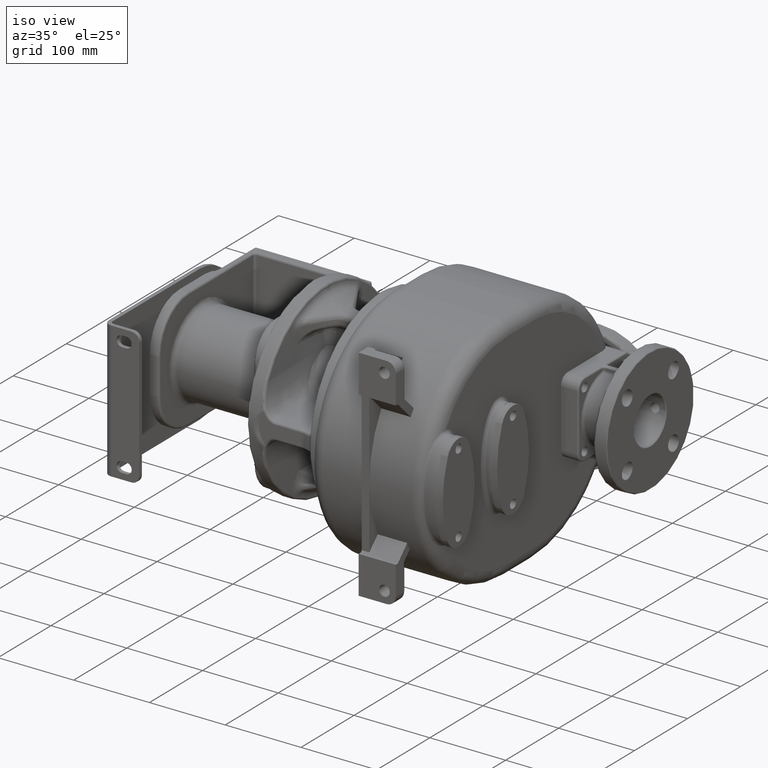
[diagram: clean part render]
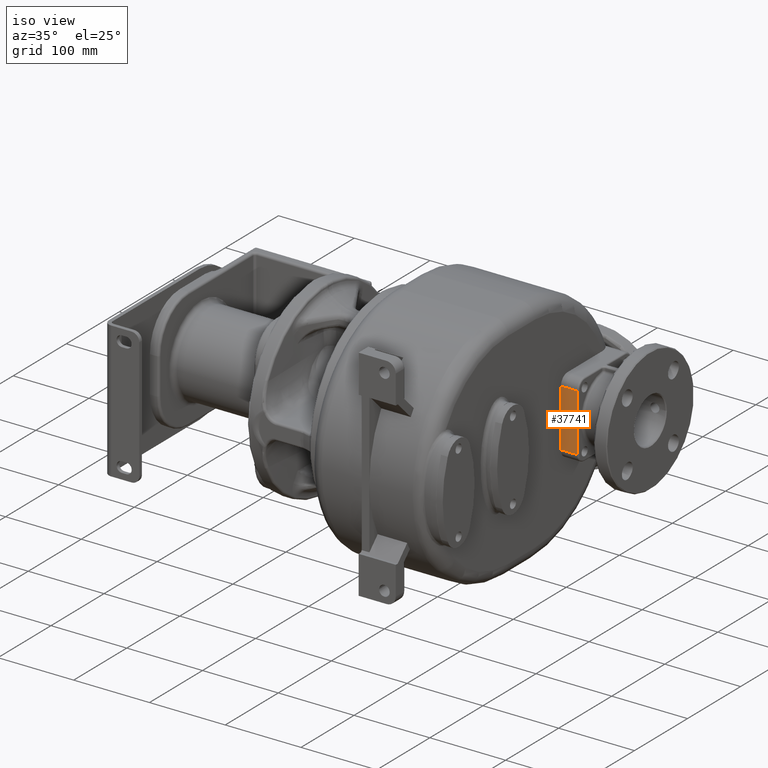
[diagram: same view with one face highlighted and labeled with its STEP entity id]
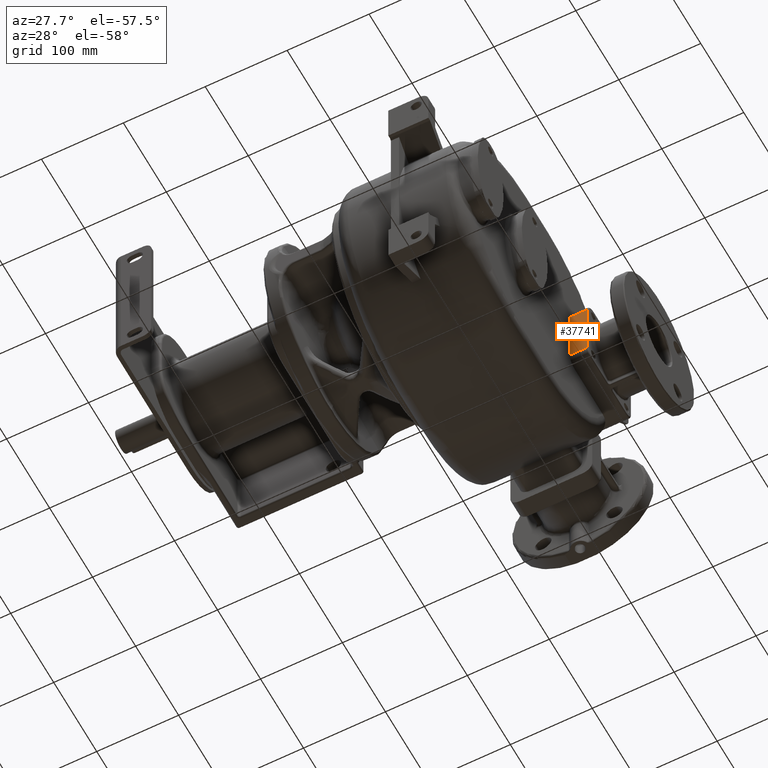
[diagram: same view with one face highlighted and labeled with its STEP entity id]
A machine part, iso view. The second image highlights one B-rep face of the part: STEP entity #37741.
A second angle (auxiliary view) of the same face is appended — the face is thin or edge-on in the first view.
In plain terms, the highlighted planar face has unit normal (0, -1, 0).
Its self-contained STEP definition (entity closure, byte-faithful):
#1481=DIRECTION('',(1.E0,0.E0,5.205571423652E-12));
#1482=VECTOR('',#1481,2.1E1);
#1483=CARTESIAN_POINT('',(5.1E1,2.6E2,-4.75E1));
#1484=LINE('',#1483,#1482);
#1499=DIRECTION('',(0.E0,0.E0,-1.E0));
#1500=VECTOR('',#1499,7.599999999986E1);
#1501=CARTESIAN_POINT('',(7.2E1,2.6E2,2.849999999997E1));
#1502=LINE('',#1501,#1500);
#1503=DIRECTION('',(0.E0,0.E0,-1.E0));
#1504=VECTOR('',#1503,7.6E1);
#1505=CARTESIAN_POINT('',(5.1E1,2.6E2,2.85E1));
#1506=LINE('',#1505,#1504);
#1516=DIRECTION('',(-1.E0,0.E0,1.412288275744E-12));
#1517=VECTOR('',#1516,2.1E1);
#1518=CARTESIAN_POINT('',(7.2E1,2.6E2,2.849999999997E1));
#1519=LINE('',#1518,#1517);
#33454=CARTESIAN_POINT('',(5.1E1,2.6E2,2.85E1));
#33455=CARTESIAN_POINT('',(5.1E1,2.6E2,-4.75E1));
#33456=VERTEX_POINT('',#33454);
#33457=VERTEX_POINT('',#33455);
#34211=CARTESIAN_POINT('',(7.2E1,2.6E2,-4.75E1));
#34212=VERTEX_POINT('',#34211);
#34215=CARTESIAN_POINT('',(7.2E1,2.6E2,2.849999999997E1));
#34216=VERTEX_POINT('',#34215);
#37727=CARTESIAN_POINT('',(6.1E1,2.6E2,2.85E1));
#37728=DIRECTION('',(0.E0,-1.E0,0.E0));
#37729=DIRECTION('',(0.E0,0.E0,-1.E0));
#37730=AXIS2_PLACEMENT_3D('',#37727,#37728,#37729);
#37731=PLANE('',#37730);
#37733=ORIENTED_EDGE('',*,*,#37732,.F.);
#37735=ORIENTED_EDGE('',*,*,#37734,.T.);
#37736=ORIENTED_EDGE('',*,*,#37717,.F.);
#37738=ORIENTED_EDGE('',*,*,#37737,.F.);
#37739=EDGE_LOOP('',(#37733,#37735,#37736,#37738));
#37740=FACE_OUTER_BOUND('',#37739,.F.);
#37741=ADVANCED_FACE('',(#37740),#37731,.T.);
#37717=EDGE_CURVE('',#33457,#34212,#1484,.T.);
#37732=EDGE_CURVE('',#34216,#33456,#1519,.T.);
#37734=EDGE_CURVE('',#34216,#34212,#1502,.T.);
#37737=EDGE_CURVE('',#33456,#33457,#1506,.T.);